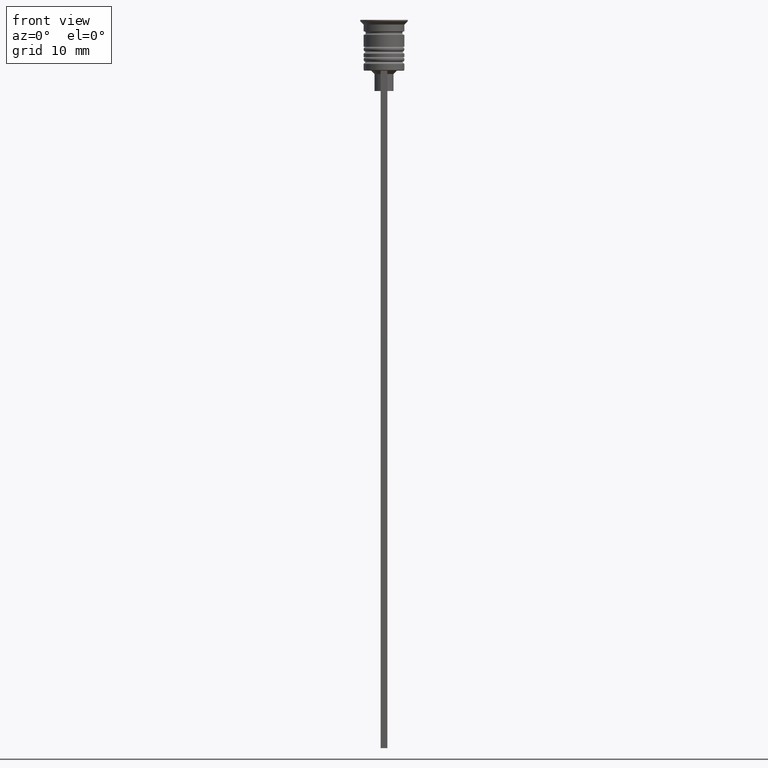
[diagram: clean part render]
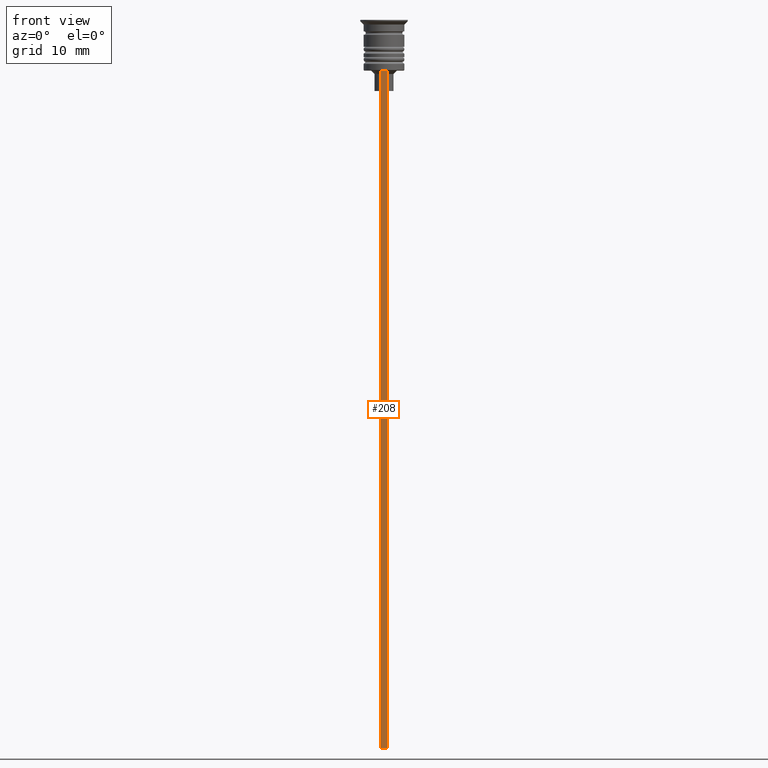
[diagram: same view with one face highlighted and labeled with its STEP entity id]
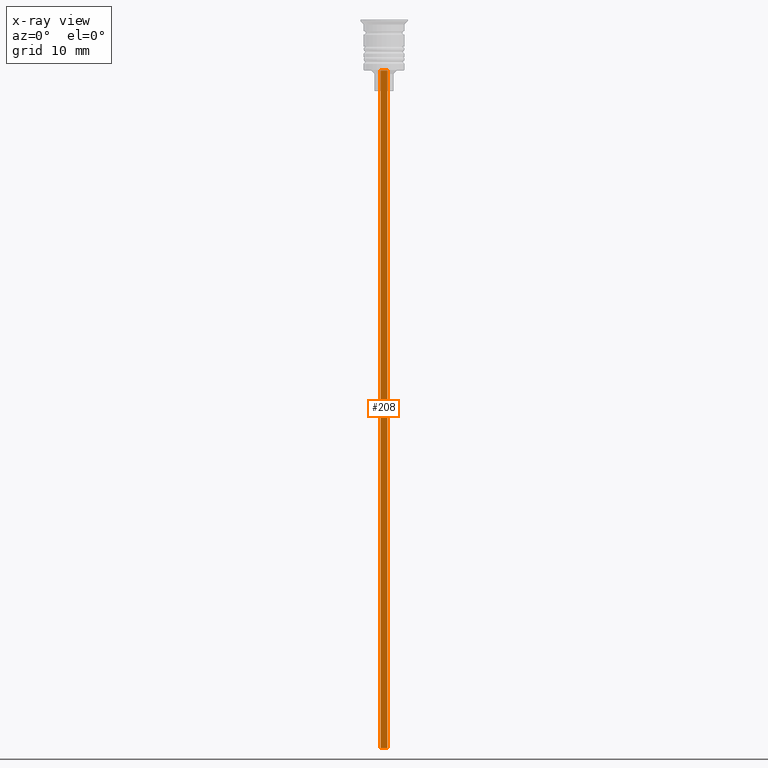
[diagram: x-ray of the same camera — body ghosted, the highlighted face saturated]
A machine part, front view. The second image highlights one B-rep face of the part: STEP entity #208.
The next image is the same camera in x-ray: the body ghosted, the highlighted face saturated — about 0% of this face is hidden behind the body in this view.
In plain terms, the highlighted planar face has unit normal (0, -1, -0).
Its self-contained STEP definition (entity closure, byte-faithful):
#181 = LINE ( 'NONE', #192, #1253 ) ;
#192 = CARTESIAN_POINT ( 'NONE',  ( 0.4999999999999998890, -3.000000000000000000, -107.5000000000000000 ) ) ;
#208 = ADVANCED_FACE ( 'NONE', ( #1585 ), #290, .T. ) ;
#290 = PLANE ( 'NONE',  #1777 ) ;
#359 = CARTESIAN_POINT ( 'NONE',  ( 0.4999999999999998890, -3.000000000000000000, -7.500000000000000000 ) ) ;
#410 = VECTOR ( 'NONE', #1589, 1000.000000000000000 ) ;
#431 = CARTESIAN_POINT ( 'NONE',  ( -0.5000000000000001110, -3.000000000000000000, -107.5000000000000000 ) ) ;
#511 = CARTESIAN_POINT ( 'NONE',  ( 0.4999999999999998890, -3.000000000000000000, -1.417237469701779329 ) ) ;
#696 = VERTEX_POINT ( 'NONE', #1201 ) ;
#761 = EDGE_CURVE ( 'NONE', #696, #793, #1234, .T. ) ;
#793 = VERTEX_POINT ( 'NONE', #431 ) ;
#803 = EDGE_CURVE ( 'NONE', #2205, #806, #1571, .T. ) ;
#806 = VERTEX_POINT ( 'NONE', #848 ) ;
#845 = CARTESIAN_POINT ( 'NONE',  ( 0.4999999999999998890, -3.000000000000000000, -1.417237469701779329 ) ) ;
#848 = CARTESIAN_POINT ( 'NONE',  ( 0.4999999999999998890, -3.000000000000000000, -107.5000000000000000 ) ) ;
#881 = CARTESIAN_POINT ( 'NONE',  ( -0.5000000000000001110, -3.000000000000000000, -1.417237469701779329 ) ) ;
#895 = DIRECTION ( 'NONE',  ( -1.000000000000000000, 0.000000000000000000, 0.000000000000000000 ) ) ;
#971 = ORIENTED_EDGE ( 'NONE', *, *, #1748, .F. ) ;
#1201 = CARTESIAN_POINT ( 'NONE',  ( -0.5000000000000001110, -3.000000000000000000, -7.500000000000000000 ) ) ;
#1234 = LINE ( 'NONE', #881, #1348 ) ;
#1253 = VECTOR ( 'NONE', #895, 1000.000000000000000 ) ;
#1285 = VECTOR ( 'NONE', #1980, 1000.000000000000000 ) ;
#1297 = ORIENTED_EDGE ( 'NONE', *, *, #803, .F. ) ;
#1348 = VECTOR ( 'NONE', #1596, 1000.000000000000000 ) ;
#1360 = EDGE_CURVE ( 'NONE', #696, #2205, #1969, .T. ) ;
#1362 = DIRECTION ( 'NONE',  ( 0.000000000000000000, -1.000000000000000000, -0.000000000000000000 ) ) ;
#1571 = LINE ( 'NONE', #511, #1285 ) ;
#1581 = ORIENTED_EDGE ( 'NONE', *, *, #1360, .F. ) ;
#1585 = FACE_OUTER_BOUND ( 'NONE', #1824, .T. ) ;
#1589 = DIRECTION ( 'NONE',  ( 1.000000000000000000, 0.000000000000000000, 0.000000000000000000 ) ) ;
#1596 = DIRECTION ( 'NONE',  ( 0.000000000000000000, 0.000000000000000000, -1.000000000000000000 ) ) ;
#1644 = ORIENTED_EDGE ( 'NONE', *, *, #761, .T. ) ;
#1724 = CARTESIAN_POINT ( 'NONE',  ( 0.4999999999999998890, -3.000000000000000000, -7.500000000000000000 ) ) ;
#1725 = DIRECTION ( 'NONE',  ( 0.000000000000000000, 0.000000000000000000, -1.000000000000000000 ) ) ;
#1748 = EDGE_CURVE ( 'NONE', #806, #793, #181, .T. ) ;
#1777 = AXIS2_PLACEMENT_3D ( 'NONE', #845, #1362, #1725 ) ;
#1824 = EDGE_LOOP ( 'NONE', ( #1581, #1644, #971, #1297 ) ) ;
#1969 = LINE ( 'NONE', #359, #410 ) ;
#1980 = DIRECTION ( 'NONE',  ( 0.000000000000000000, 0.000000000000000000, -1.000000000000000000 ) ) ;
#2205 = VERTEX_POINT ( 'NONE', #1724 ) ;